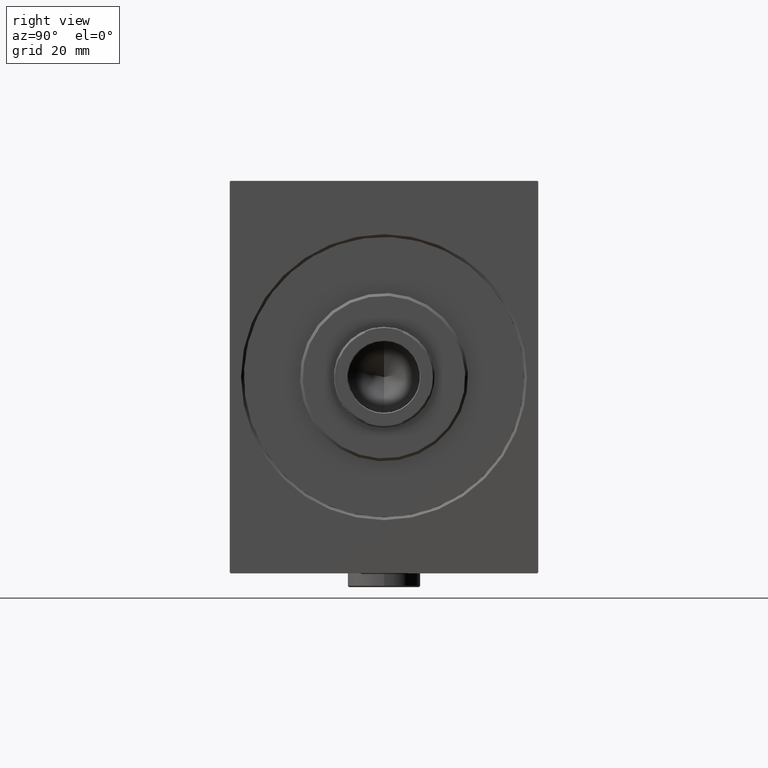
[diagram: clean part render]
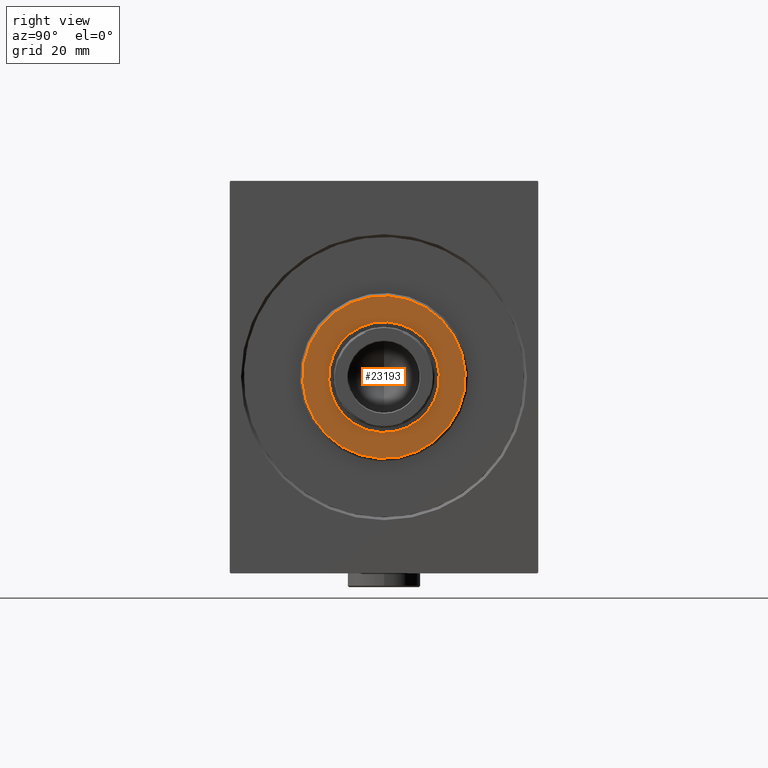
[diagram: same view with one face highlighted and labeled with its STEP entity id]
A machine part, right view. The second image highlights one B-rep face of the part: STEP entity #23193.
In plain terms, the highlighted planar face has unit normal (1, -0, -0).
Its self-contained STEP definition (entity closure, byte-faithful):
#218 = CARTESIAN_POINT ( 'NONE',  ( 3.000000000000000000, 0.000000000000000000, 28.99999999999999289 ) ) ;
#1462 = DIRECTION ( 'NONE',  ( 1.000000000000000000, 0.000000000000000000, 0.000000000000000000 ) ) ;
#3198 = AXIS2_PLACEMENT_3D ( 'NONE', #24245, #14146, #37708 ) ;
#3390 = ORIENTED_EDGE ( 'NONE', *, *, #42929, .F. ) ;
#3970 = VERTEX_POINT ( 'NONE', #218 ) ;
#5288 = EDGE_CURVE ( 'NONE', #3970, #21047, #32544, .T. ) ;
#5291 = EDGE_CURVE ( 'NONE', #21047, #3970, #43293, .T. ) ;
#9129 = DIRECTION ( 'NONE',  ( 0.000000000000000000, 0.000000000000000000, -1.000000000000000000 ) ) ;
#9949 = DIRECTION ( 'NONE',  ( 1.000000000000000000, 0.000000000000000000, 0.000000000000000000 ) ) ;
#11794 = DIRECTION ( 'NONE',  ( 0.000000000000000000, 0.000000000000000000, -1.000000000000000000 ) ) ;
#12274 = DIRECTION ( 'NONE',  ( 1.000000000000000000, -0.000000000000000000, 0.000000000000000000 ) ) ;
#12499 = DIRECTION ( 'NONE',  ( 1.000000000000000000, -0.000000000000000000, 0.000000000000000000 ) ) ;
#12729 = CARTESIAN_POINT ( 'NONE',  ( 3.000000000000000000, 0.000000000000000000, 0.000000000000000000 ) ) ;
#13013 = VERTEX_POINT ( 'NONE', #34681 ) ;
#14146 = DIRECTION ( 'NONE',  ( 1.000000000000000000, -0.000000000000000000, 0.000000000000000000 ) ) ;
#15668 = CARTESIAN_POINT ( 'NONE',  ( 3.000000000000000000, 2.418677428316022726E-15, 19.75000000000000000 ) ) ;
#18220 = AXIS2_PLACEMENT_3D ( 'NONE', #12729, #12499, #9129 ) ;
#21047 = VERTEX_POINT ( 'NONE', #43994 ) ;
#21129 = ORIENTED_EDGE ( 'NONE', *, *, #5288, .T. ) ;
#21277 = ORIENTED_EDGE ( 'NONE', *, *, #5291, .T. ) ;
#21525 = ORIENTED_EDGE ( 'NONE', *, *, #33438, .F. ) ;
#22490 = VERTEX_POINT ( 'NONE', #15668 ) ;
#23193 = ADVANCED_FACE ( 'NONE', ( #41288, #30546 ), #23594, .T. ) ;
#23594 = PLANE ( 'NONE',  #3198 ) ;
#23646 = DIRECTION ( 'NONE',  ( 0.000000000000000000, 0.000000000000000000, -1.000000000000000000 ) ) ;
#23960 = AXIS2_PLACEMENT_3D ( 'NONE', #40093, #12274, #40309 ) ;
#24206 = EDGE_LOOP ( 'NONE', ( #3390, #21525 ) ) ;
#24245 = CARTESIAN_POINT ( 'NONE',  ( 3.000000000000000000, 0.000000000000000000, 0.000000000000000000 ) ) ;
#30546 = FACE_BOUND ( 'NONE', #24206, .T. ) ;
#32011 = CARTESIAN_POINT ( 'NONE',  ( 3.000000000000000000, 0.000000000000000000, 0.000000000000000000 ) ) ;
#32162 = AXIS2_PLACEMENT_3D ( 'NONE', #40683, #9949, #23646 ) ;
#32544 = CIRCLE ( 'NONE', #18220, 28.99999999999999289 ) ;
#33438 = EDGE_CURVE ( 'NONE', #22490, #13013, #33610, .T. ) ;
#33610 = CIRCLE ( 'NONE', #32162, 19.75000000000000000 ) ;
#34432 = AXIS2_PLACEMENT_3D ( 'NONE', #32011, #1462, #11794 ) ;
#34681 = CARTESIAN_POINT ( 'NONE',  ( 3.000000000000000000, 0.000000000000000000, -19.75000000000000000 ) ) ;
#35171 = EDGE_LOOP ( 'NONE', ( #21129, #21277 ) ) ;
#37708 = DIRECTION ( 'NONE',  ( 0.000000000000000000, 0.000000000000000000, -1.000000000000000000 ) ) ;
#39459 = CIRCLE ( 'NONE', #34432, 19.75000000000000000 ) ;
#40093 = CARTESIAN_POINT ( 'NONE',  ( 3.000000000000000000, 0.000000000000000000, 0.000000000000000000 ) ) ;
#40309 = DIRECTION ( 'NONE',  ( 0.000000000000000000, 0.000000000000000000, -1.000000000000000000 ) ) ;
#40683 = CARTESIAN_POINT ( 'NONE',  ( 3.000000000000000000, 0.000000000000000000, 0.000000000000000000 ) ) ;
#41288 = FACE_OUTER_BOUND ( 'NONE', #35171, .T. ) ;
#42929 = EDGE_CURVE ( 'NONE', #13013, #22490, #39459, .T. ) ;
#43293 = CIRCLE ( 'NONE', #23960, 28.99999999999999289 ) ;
#43994 = CARTESIAN_POINT ( 'NONE',  ( 3.000000000000000000, 3.612708057484691604E-15, -28.99999999999999289 ) ) ;